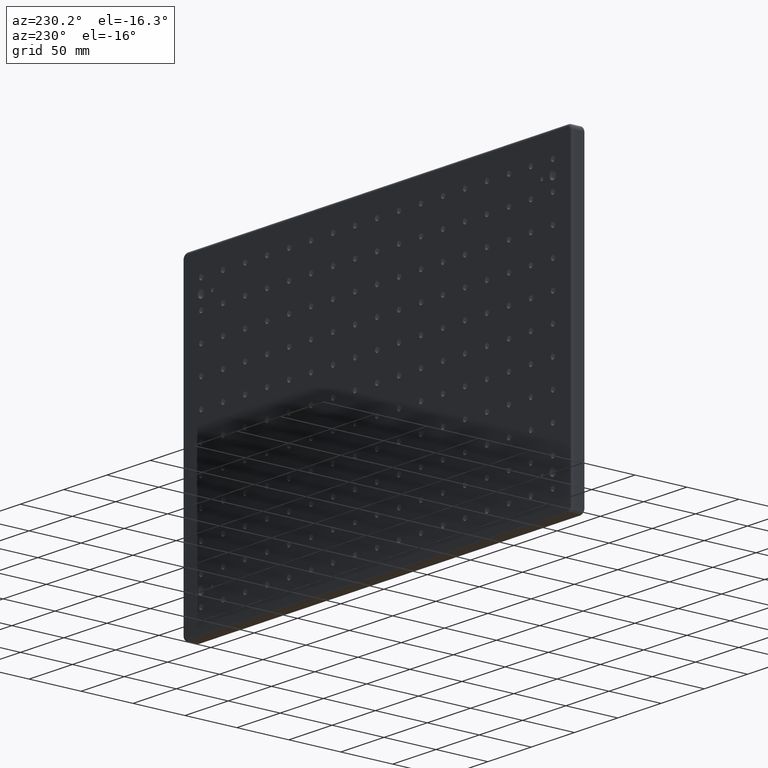
[diagram: clean part render]
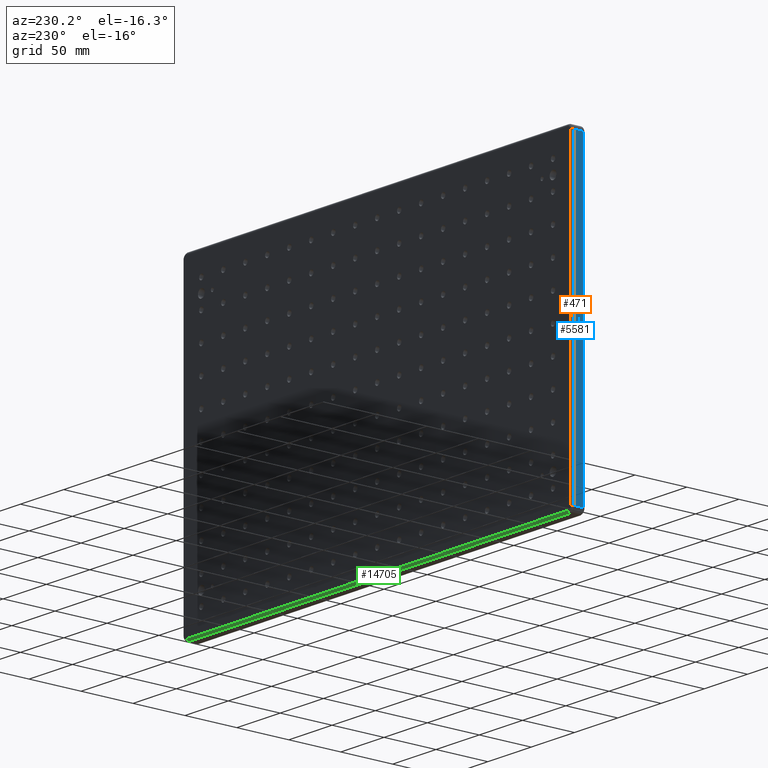
[diagram: same view with three faces highlighted in distinct colors, each labeled with its STEP entity id]
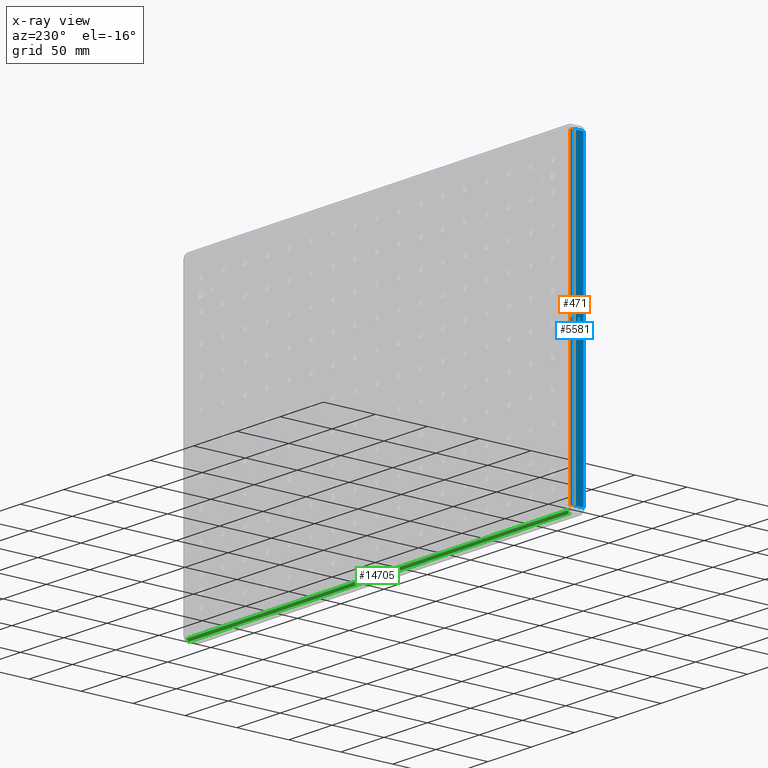
[diagram: x-ray of the same camera — body ghosted, the three highlighted faces saturated]
A machine part, auxiliary view with three faces highlighted in distinct colors.
The next image is the same camera in x-ray (body ghosted, the three faces saturated) — at least one of them is partly hidden behind the body in this view.
Their STEP definitions:

[orange] entity #471 — the highlighted cylindrical surface (edge-blend (fillet) strip) has radius 2 mm, axis along (0, 0, 1).
#336 = ORIENTED_EDGE ( 'NONE', *, *, #9725, .T. ) ;
#471 = ADVANCED_FACE ( 'NONE', ( #2147 ), #8878, .T. ) ;
#843 = CARTESIAN_POINT ( 'NONE',  ( -223.0000000000000000, 4.500000000000000000, 145.0000000000000000 ) ) ;
#950 = ORIENTED_EDGE ( 'NONE', *, *, #5960, .F. ) ;
#1245 = EDGE_LOOP ( 'NONE', ( #336, #2180, #950, #3183 ) ) ;
#1851 = DIRECTION ( 'NONE',  ( 0.0000000000000000000, -0.0000000000000000000, 1.000000000000000000 ) ) ;
#2147 = FACE_OUTER_BOUND ( 'NONE', #1245, .T. ) ;
#2174 = DIRECTION ( 'NONE',  ( 0.0000000000000000000, 0.0000000000000000000, 1.000000000000000000 ) ) ;
#2180 = ORIENTED_EDGE ( 'NONE', *, *, #9183, .F. ) ;
#3031 = VERTEX_POINT ( 'NONE', #7505 ) ;
#3183 = ORIENTED_EDGE ( 'NONE', *, *, #14049, .F. ) ;
#3920 = DIRECTION ( 'NONE',  ( 0.0000000000000000000, -0.0000000000000000000, 1.000000000000000000 ) ) ;
#4820 = CARTESIAN_POINT ( 'NONE',  ( -223.0000000000000000, 6.500000000000000000, 145.0000000000000000 ) ) ;
#5960 = EDGE_CURVE ( 'NONE', #9283, #11308, #12516, .T. ) ;
#6173 = LINE ( 'NONE', #13705, #12172 ) ;
#6400 = AXIS2_PLACEMENT_3D ( 'NONE', #843, #1851, #13763 ) ;
#7505 = CARTESIAN_POINT ( 'NONE',  ( -225.0000000000000000, 4.500000000000000000, -144.9999999999999400 ) ) ;
#7745 = DIRECTION ( 'NONE',  ( -0.0000000000000000000, -0.0000000000000000000, -1.000000000000000000 ) ) ;
#8724 = LINE ( 'NONE', #10206, #13224 ) ;
#8780 = CARTESIAN_POINT ( 'NONE',  ( -225.0000000000000000, 4.500000000000000000, 145.0000000000000000 ) ) ;
#8878 = CYLINDRICAL_SURFACE ( 'NONE', #11416, 2.000000000000001800 ) ;
#9112 = VERTEX_POINT ( 'NONE', #11549 ) ;
#9183 = EDGE_CURVE ( 'NONE', #11308, #3031, #6173, .T. ) ;
#9283 = VERTEX_POINT ( 'NONE', #4820 ) ;
#9725 = EDGE_CURVE ( 'NONE', #9112, #3031, #10065, .T. ) ;
#9759 = CARTESIAN_POINT ( 'NONE',  ( -223.0000000000000000, 4.500000000000000000, -144.9999999999999400 ) ) ;
#10065 = CIRCLE ( 'NONE', #14985, 2.000000000000001800 ) ;
#10206 = CARTESIAN_POINT ( 'NONE',  ( -223.0000000000000000, 6.500000000000000000, -150.0000000000000000 ) ) ;
#10972 = CARTESIAN_POINT ( 'NONE',  ( -223.0000000000000000, 4.500000000000000000, -150.0000000000000000 ) ) ;
#11087 = DIRECTION ( 'NONE',  ( 0.0000000000000000000, 0.0000000000000000000, 1.000000000000000000 ) ) ;
#11137 = DIRECTION ( 'NONE',  ( 1.000000000000000000, 0.0000000000000000000, 0.0000000000000000000 ) ) ;
#11308 = VERTEX_POINT ( 'NONE', #8780 ) ;
#11416 = AXIS2_PLACEMENT_3D ( 'NONE', #10972, #11087, #11137 ) ;
#11549 = CARTESIAN_POINT ( 'NONE',  ( -223.0000000000000000, 6.500000000000000000, -144.9999999999999400 ) ) ;
#12172 = VECTOR ( 'NONE', #7745, 1000.000000000000000 ) ;
#12516 = CIRCLE ( 'NONE', #6400, 2.000000000000001800 ) ;
#13224 = VECTOR ( 'NONE', #2174, 1000.000000000000000 ) ;
#13499 = DIRECTION ( 'NONE',  ( 1.000000000000000000, 0.0000000000000000000, 0.0000000000000000000 ) ) ;
#13705 = CARTESIAN_POINT ( 'NONE',  ( -225.0000000000000000, 4.500000000000000000, 150.0000000000000000 ) ) ;
#13763 = DIRECTION ( 'NONE',  ( 1.000000000000000000, 0.0000000000000000000, 0.0000000000000000000 ) ) ;
#14049 = EDGE_CURVE ( 'NONE', #9112, #9283, #8724, .T. ) ;
#14985 = AXIS2_PLACEMENT_3D ( 'NONE', #9759, #3920, #13499 ) ;

[blue] entity #5581 — the highlighted planar face has unit normal (1, -0, 0).
#22 = VERTEX_POINT ( 'NONE', #8312 ) ;
#153 = CARTESIAN_POINT ( 'NONE',  ( -225.0000000000000000, -4.500000000000000000, -144.9999999999999400 ) ) ;
#663 = PLANE ( 'NONE',  #10686 ) ;
#1064 = ORIENTED_EDGE ( 'NONE', *, *, #3038, .T. ) ;
#1088 = FACE_OUTER_BOUND ( 'NONE', #7715, .T. ) ;
#1704 = LINE ( 'NONE', #4681, #14983 ) ;
#2515 = VERTEX_POINT ( 'NONE', #153 ) ;
#2772 = ORIENTED_EDGE ( 'NONE', *, *, #9183, .T. ) ;
#3031 = VERTEX_POINT ( 'NONE', #7505 ) ;
#3038 = EDGE_CURVE ( 'NONE', #22, #11308, #11080, .T. ) ;
#3279 = DIRECTION ( 'NONE',  ( 0.0000000000000000000, 0.0000000000000000000, -1.000000000000000000 ) ) ;
#4130 = EDGE_CURVE ( 'NONE', #2515, #22, #1704, .T. ) ;
#4532 = DIRECTION ( 'NONE',  ( 1.000000000000000000, -0.0000000000000000000, 0.0000000000000000000 ) ) ;
#4681 = CARTESIAN_POINT ( 'NONE',  ( -225.0000000000000000, -4.500000000000000000, 145.0000000000000000 ) ) ;
#4891 = ORIENTED_EDGE ( 'NONE', *, *, #12050, .T. ) ;
#5581 = ADVANCED_FACE ( 'NONE', ( #1088 ), #663, .F. ) ;
#6173 = LINE ( 'NONE', #13705, #12172 ) ;
#6322 = CARTESIAN_POINT ( 'NONE',  ( -225.0000000000000000, 6.500000000000000000, 150.0000000000000000 ) ) ;
#6944 = DIRECTION ( 'NONE',  ( -0.0000000000000000000, -1.000000000000000000, 0.0000000000000000000 ) ) ;
#7342 = CARTESIAN_POINT ( 'NONE',  ( -225.0000000000000000, 6.500000000000000000, 145.0000000000000000 ) ) ;
#7505 = CARTESIAN_POINT ( 'NONE',  ( -225.0000000000000000, 4.500000000000000000, -144.9999999999999400 ) ) ;
#7715 = EDGE_LOOP ( 'NONE', ( #4891, #14194, #1064, #2772 ) ) ;
#7745 = DIRECTION ( 'NONE',  ( -0.0000000000000000000, -0.0000000000000000000, -1.000000000000000000 ) ) ;
#8116 = DIRECTION ( 'NONE',  ( -0.0000000000000000000, 0.0000000000000000000, 1.000000000000000000 ) ) ;
#8312 = CARTESIAN_POINT ( 'NONE',  ( -225.0000000000000000, -4.500000000000000000, 145.0000000000000000 ) ) ;
#8780 = CARTESIAN_POINT ( 'NONE',  ( -225.0000000000000000, 4.500000000000000000, 145.0000000000000000 ) ) ;
#9183 = EDGE_CURVE ( 'NONE', #11308, #3031, #6173, .T. ) ;
#9275 = CARTESIAN_POINT ( 'NONE',  ( -225.0000000000000000, 6.500000000000000000, -144.9999999999999400 ) ) ;
#9767 = VECTOR ( 'NONE', #6944, 1000.000000000000000 ) ;
#10338 = LINE ( 'NONE', #9275, #9767 ) ;
#10503 = VECTOR ( 'NONE', #13379, 1000.000000000000000 ) ;
#10686 = AXIS2_PLACEMENT_3D ( 'NONE', #6322, #4532, #3279 ) ;
#11080 = LINE ( 'NONE', #7342, #10503 ) ;
#11308 = VERTEX_POINT ( 'NONE', #8780 ) ;
#12050 = EDGE_CURVE ( 'NONE', #3031, #2515, #10338, .T. ) ;
#12172 = VECTOR ( 'NONE', #7745, 1000.000000000000000 ) ;
#13379 = DIRECTION ( 'NONE',  ( 0.0000000000000000000, 1.000000000000000000, -0.0000000000000000000 ) ) ;
#13705 = CARTESIAN_POINT ( 'NONE',  ( -225.0000000000000000, 4.500000000000000000, 150.0000000000000000 ) ) ;
#14194 = ORIENTED_EDGE ( 'NONE', *, *, #4130, .T. ) ;
#14983 = VECTOR ( 'NONE', #8116, 1000.000000000000000 ) ;

[green] entity #14705 — the highlighted cylindrical surface (edge-blend (fillet) strip) has radius 2 mm, axis along (-1, 0, 0).
#427 = CARTESIAN_POINT ( 'NONE',  ( -220.0000000000000000, 4.500000000000000000, -150.0000000000000000 ) ) ;
#514 = EDGE_CURVE ( 'NONE', #7366, #3361, #1964, .T. ) ;
#529 = DIRECTION ( 'NONE',  ( 1.000000000000000000, -0.0000000000000000000, -0.0000000000000000000 ) ) ;
#792 = LINE ( 'NONE', #7216, #9195 ) ;
#886 = AXIS2_PLACEMENT_3D ( 'NONE', #12751, #6790, #6683 ) ;
#1302 = AXIS2_PLACEMENT_3D ( 'NONE', #10037, #1995, #2782 ) ;
#1701 = VERTEX_POINT ( 'NONE', #15234 ) ;
#1964 = LINE ( 'NONE', #13853, #11685 ) ;
#1995 = DIRECTION ( 'NONE',  ( -1.000000000000000000, 0.0000000000000000000, 0.0000000000000000000 ) ) ;
#2190 = CARTESIAN_POINT ( 'NONE',  ( -225.0000000000000000, 4.500000000000000000, -148.0000000000000000 ) ) ;
#2533 = EDGE_CURVE ( 'NONE', #1701, #7291, #792, .T. ) ;
#2782 = DIRECTION ( 'NONE',  ( 0.0000000000000000000, 0.0000000000000000000, 1.000000000000000000 ) ) ;
#3361 = VERTEX_POINT ( 'NONE', #11942 ) ;
#3552 = DIRECTION ( 'NONE',  ( 0.0000000000000000000, 0.0000000000000000000, 1.000000000000000000 ) ) ;
#3991 = CIRCLE ( 'NONE', #886, 2.000000000000001800 ) ;
#4823 = AXIS2_PLACEMENT_3D ( 'NONE', #2190, #7157, #3552 ) ;
#5285 = CARTESIAN_POINT ( 'NONE',  ( -220.0000000000000000, 6.500000000000000000, -148.0000000000000000 ) ) ;
#5445 = CIRCLE ( 'NONE', #1302, 2.000000000000001800 ) ;
#6683 = DIRECTION ( 'NONE',  ( 0.0000000000000000000, 0.0000000000000000000, 1.000000000000000000 ) ) ;
#6790 = DIRECTION ( 'NONE',  ( -1.000000000000000000, 0.0000000000000000000, 0.0000000000000000000 ) ) ;
#7157 = DIRECTION ( 'NONE',  ( -1.000000000000000000, 0.0000000000000000000, 0.0000000000000000000 ) ) ;
#7216 = CARTESIAN_POINT ( 'NONE',  ( -225.0000000000000000, 6.500000000000000000, -148.0000000000000000 ) ) ;
#7286 = EDGE_CURVE ( 'NONE', #1701, #3361, #5445, .T. ) ;
#7291 = VERTEX_POINT ( 'NONE', #5285 ) ;
#7366 = VERTEX_POINT ( 'NONE', #427 ) ;
#8409 = ORIENTED_EDGE ( 'NONE', *, *, #514, .F. ) ;
#8905 = FACE_OUTER_BOUND ( 'NONE', #11903, .T. ) ;
#9195 = VECTOR ( 'NONE', #9612, 1000.000000000000000 ) ;
#9612 = DIRECTION ( 'NONE',  ( -1.000000000000000000, 0.0000000000000000000, 0.0000000000000000000 ) ) ;
#10037 = CARTESIAN_POINT ( 'NONE',  ( 220.0000000000000000, 4.500000000000000000, -148.0000000000000000 ) ) ;
#11685 = VECTOR ( 'NONE', #529, 1000.000000000000000 ) ;
#11903 = EDGE_LOOP ( 'NONE', ( #12341, #8409, #13993, #13492 ) ) ;
#11927 = EDGE_CURVE ( 'NONE', #7291, #7366, #3991, .T. ) ;
#11942 = CARTESIAN_POINT ( 'NONE',  ( 220.0000000000000000, 4.500000000000000000, -150.0000000000000000 ) ) ;
#12341 = ORIENTED_EDGE ( 'NONE', *, *, #7286, .T. ) ;
#12751 = CARTESIAN_POINT ( 'NONE',  ( -220.0000000000000000, 4.500000000000000000, -148.0000000000000000 ) ) ;
#13492 = ORIENTED_EDGE ( 'NONE', *, *, #2533, .F. ) ;
#13853 = CARTESIAN_POINT ( 'NONE',  ( -225.0000000000000000, 4.500000000000000000, -150.0000000000000000 ) ) ;
#13993 = ORIENTED_EDGE ( 'NONE', *, *, #11927, .F. ) ;
#14705 = ADVANCED_FACE ( 'NONE', ( #8905 ), #14897, .T. ) ;
#14897 = CYLINDRICAL_SURFACE ( 'NONE', #4823, 2.000000000000001800 ) ;
#15234 = CARTESIAN_POINT ( 'NONE',  ( 220.0000000000000000, 6.500000000000000000, -148.0000000000000000 ) ) ;